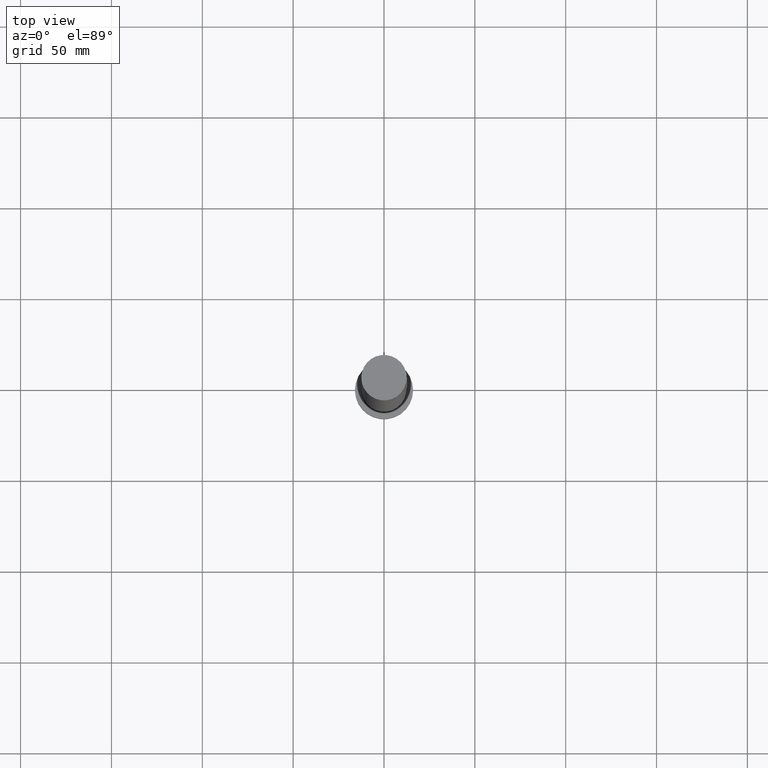
[diagram: clean part render]
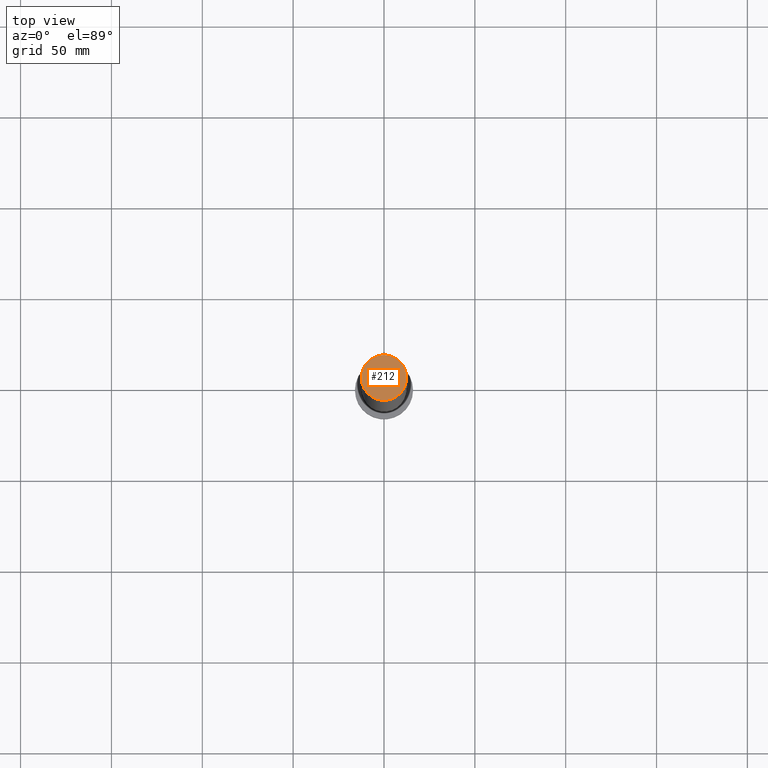
[diagram: same view with one face highlighted and labeled with its STEP entity id]
A machine part, top view. The second image highlights one B-rep face of the part: STEP entity #212.
In plain terms, the highlighted planar face has unit normal (0, 0, 1).
Its self-contained STEP definition (entity closure, byte-faithful):
#6 = DIRECTION ( 'NONE',  ( 1.000000000000000000, 0.000000000000000000, 0.000000000000000000 ) ) ;
#25 = CARTESIAN_POINT ( 'NONE',  ( 0.000000000000000000, 0.000000000000000000, 400.0000000000000000 ) ) ;
#43 = DIRECTION ( 'NONE',  ( 1.000000000000000000, 0.000000000000000000, 0.000000000000000000 ) ) ;
#48 = DIRECTION ( 'NONE',  ( 0.000000000000000000, 0.000000000000000000, 1.000000000000000000 ) ) ;
#66 = PLANE ( 'NONE',  #121 ) ;
#70 = EDGE_CURVE ( 'NONE', #252, #79, #209, .T. ) ;
#79 = VERTEX_POINT ( 'NONE', #114 ) ;
#82 = ORIENTED_EDGE ( 'NONE', *, *, #98, .T. ) ;
#93 = CARTESIAN_POINT ( 'NONE',  ( 0.000000000000000000, 0.000000000000000000, 400.0000000000000000 ) ) ;
#98 = EDGE_CURVE ( 'NONE', #79, #252, #173, .T. ) ;
#114 = CARTESIAN_POINT ( 'NONE',  ( -12.50000000000000000, 0.000000000000000000, 400.0000000000000000 ) ) ;
#118 = DIRECTION ( 'NONE',  ( 0.000000000000000000, 0.000000000000000000, 1.000000000000000000 ) ) ;
#121 = AXIS2_PLACEMENT_3D ( 'NONE', #150, #118, #208 ) ;
#129 = ORIENTED_EDGE ( 'NONE', *, *, #70, .T. ) ;
#150 = CARTESIAN_POINT ( 'NONE',  ( 0.000000000000000000, 0.000000000000000000, 400.0000000000000000 ) ) ;
#160 = AXIS2_PLACEMENT_3D ( 'NONE', #25, #211, #6 ) ;
#173 = CIRCLE ( 'NONE', #160, 12.50000000000000000 ) ;
#178 = EDGE_LOOP ( 'NONE', ( #82, #129 ) ) ;
#204 = CARTESIAN_POINT ( 'NONE',  ( 12.50000000000000000, 1.530808498934191521E-15, 400.0000000000000000 ) ) ;
#208 = DIRECTION ( 'NONE',  ( 1.000000000000000000, 0.000000000000000000, -0.000000000000000000 ) ) ;
#209 = CIRCLE ( 'NONE', #235, 12.50000000000000000 ) ;
#211 = DIRECTION ( 'NONE',  ( 0.000000000000000000, 0.000000000000000000, 1.000000000000000000 ) ) ;
#212 = ADVANCED_FACE ( 'NONE', ( #244 ), #66, .T. ) ;
#235 = AXIS2_PLACEMENT_3D ( 'NONE', #93, #48, #43 ) ;
#244 = FACE_OUTER_BOUND ( 'NONE', #178, .T. ) ;
#252 = VERTEX_POINT ( 'NONE', #204 ) ;